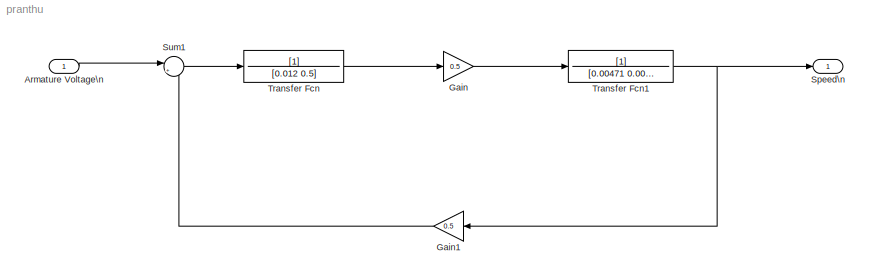
MODEL pranthu
KIND model
BLOCK [Inport] Armature Voltage\n
  IconDisplay = Port number and signal name
  SID = 1
BLOCK [Gain] Gain
  Gain = 0.5
  OutDataTypeStr = Inherit: Inherit via internal rule
  ParamDataTypeStr = Inherit: Inherit via internal rule
  SID = 2
  SaturateOnIntegerOverflow = off
BLOCK [Gain] Gain1
  Gain = 0.5
  OutDataTypeStr = Inherit: Inherit via internal rule
  ParamDataTypeStr = Inherit: Inherit via internal rule
  SID = 3
  SaturateOnIntegerOverflow = off
BLOCK [Outport] Speed\n
  IconDisplay = Port number and signal name
  SID = 7
BLOCK [Sum] Sum1
  IconShape = round
  InputSameDT = off
  Inputs = |+-
  OutDataTypeStr = Inherit: Inherit via internal rule
  Ports = [2, 1]
  SID = 4
  SaturateOnIntegerOverflow = off
BLOCK [TransferFcn] Transfer Fcn
  Denominator = [0.012 0.5]
  SID = 5
BLOCK [TransferFcn] Transfer Fcn1
  Denominator = [0.00471 0.002]
  SID = 6
LINE Armature Voltage\n:1 -> Sum1:1
LINE Gain1:1 -> Sum1:2
LINE Gain:1 -> Transfer Fcn1:1
LINE Sum1:1 -> Transfer Fcn:1
NET Transfer Fcn1:1 -> Gain1:1, Speed\n:1
LINE Transfer Fcn:1 -> Gain:1
note: NET lines group one-source signal fan-out (src -> all destinations, sorted); 1:1 wires keep LINE
